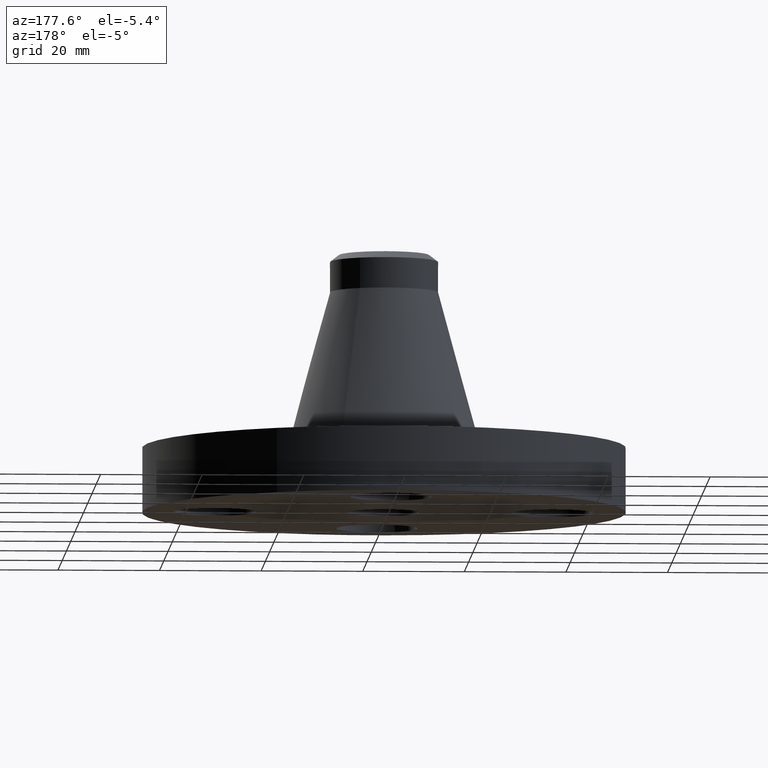
[diagram: clean part render]
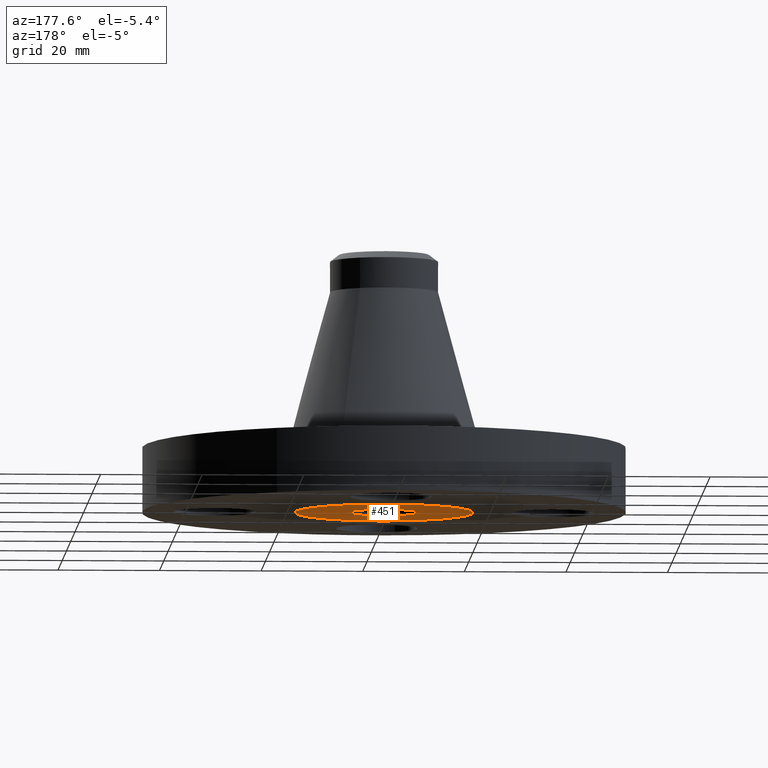
[diagram: same view with one face highlighted and labeled with its STEP entity id]
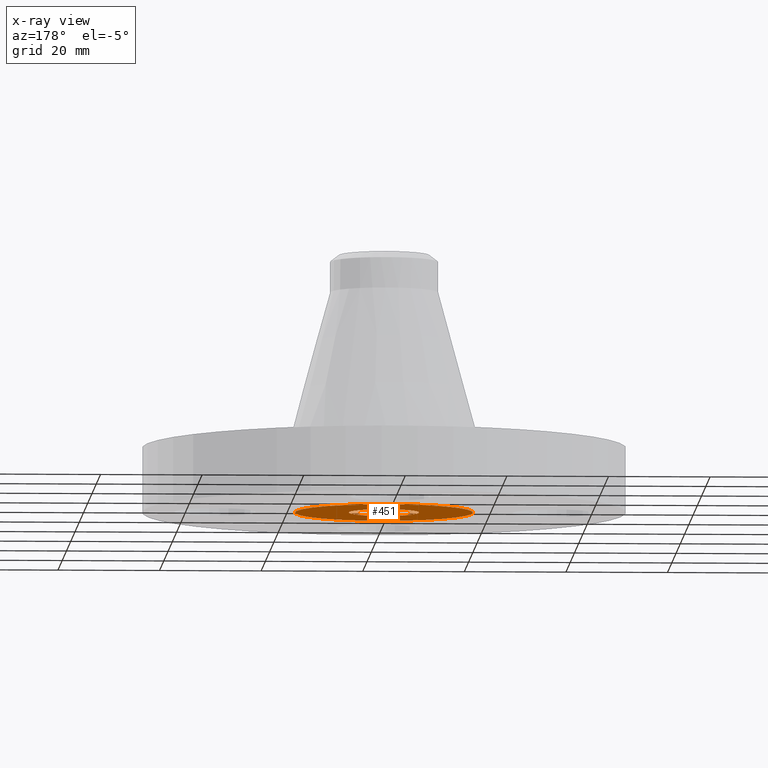
[diagram: x-ray of the same camera — body ghosted, the highlighted face saturated]
A machine part, auxiliary view. The second image highlights one B-rep face of the part: STEP entity #451.
The next image is the same camera in x-ray: the body ghosted, the highlighted face saturated — about 0% of this face is hidden behind the body in this view.
In plain terms, the highlighted planar face has unit normal (0, 0, -1).
Its self-contained STEP definition (entity closure, byte-faithful):
#363=AXIS2_PLACEMENT_3D('Circle Axis2P3D',#361,#362,$) ;
#387=AXIS2_PLACEMENT_3D('Circle Axis2P3D',#385,#386,$) ;
#427=AXIS2_PLACEMENT_3D('Plane Axis2P3D',#424,#425,#426) ;
#431=AXIS2_PLACEMENT_3D('Circle Axis2P3D',#429,#430,$) ;
#440=AXIS2_PLACEMENT_3D('Circle Axis2P3D',#438,#439,$) ;
#358=CARTESIAN_POINT('Vertex',(-0.130883172039,-0.239580039397,-5.59482469102E-016)) ;
#361=CARTESIAN_POINT('Axis2P3D Location',(0.,0.,-5.59482469102E-016)) ;
#365=CARTESIAN_POINT('Vertex',(0.130883172039,0.239580039397,-5.59482469102E-016)) ;
#385=CARTESIAN_POINT('Axis2P3D Location',(0.,0.,-5.59482469102E-016)) ;
#424=CARTESIAN_POINT('Axis2P3D Location',(0.,0.273000000001,0.)) ;
#429=CARTESIAN_POINT('Axis2P3D Location',(0.,0.,0.)) ;
#433=CARTESIAN_POINT('Vertex',(-0.330803621638,-0.605531967707,0.)) ;
#435=CARTESIAN_POINT('Vertex',(0.330803621638,0.605531967707,0.)) ;
#438=CARTESIAN_POINT('Axis2P3D Location',(0.,0.,0.)) ;
#362=DIRECTION('Axis2P3D Direction',(0.,0.,-0.0393700787402)) ;
#386=DIRECTION('Axis2P3D Direction',(0.,0.,-0.0393700787402)) ;
#425=DIRECTION('Axis2P3D Direction',(0.,0.,-0.0393700787402)) ;
#426=DIRECTION('Axis2P3D XDirection',(0.0393700787402,0.,0.)) ;
#430=DIRECTION('Axis2P3D Direction',(0.,0.,-0.0393700787402)) ;
#439=DIRECTION('Axis2P3D Direction',(0.,0.,-0.0393700787402)) ;
#444=ORIENTED_EDGE('',*,*,#437,.T.) ;
#445=ORIENTED_EDGE('',*,*,#442,.T.) ;
#448=ORIENTED_EDGE('',*,*,#389,.F.) ;
#449=ORIENTED_EDGE('',*,*,#367,.F.) ;
#450=FACE_BOUND('',#447,.T.) ;
#451=ADVANCED_FACE('PartBody',(#446,#450),#428,.T.) ;
#364=CIRCLE('generated circle',#363,0.273000000001) ;
#388=CIRCLE('generated circle',#387,0.273000000001) ;
#432=CIRCLE('generated circle',#431,0.690000000003) ;
#441=CIRCLE('generated circle',#440,0.690000000003) ;
#367=EDGE_CURVE('',#359,#366,#364,.T.) ;
#389=EDGE_CURVE('',#366,#359,#388,.T.) ;
#437=EDGE_CURVE('',#434,#436,#432,.T.) ;
#442=EDGE_CURVE('',#436,#434,#441,.T.) ;
#443=EDGE_LOOP('',(#444,#445)) ;
#447=EDGE_LOOP('',(#448,#449)) ;
#446=FACE_OUTER_BOUND('',#443,.T.) ;
#428=PLANE('',#427) ;
#359=VERTEX_POINT('',#358) ;
#366=VERTEX_POINT('',#365) ;
#434=VERTEX_POINT('',#433) ;
#436=VERTEX_POINT('',#435) ;